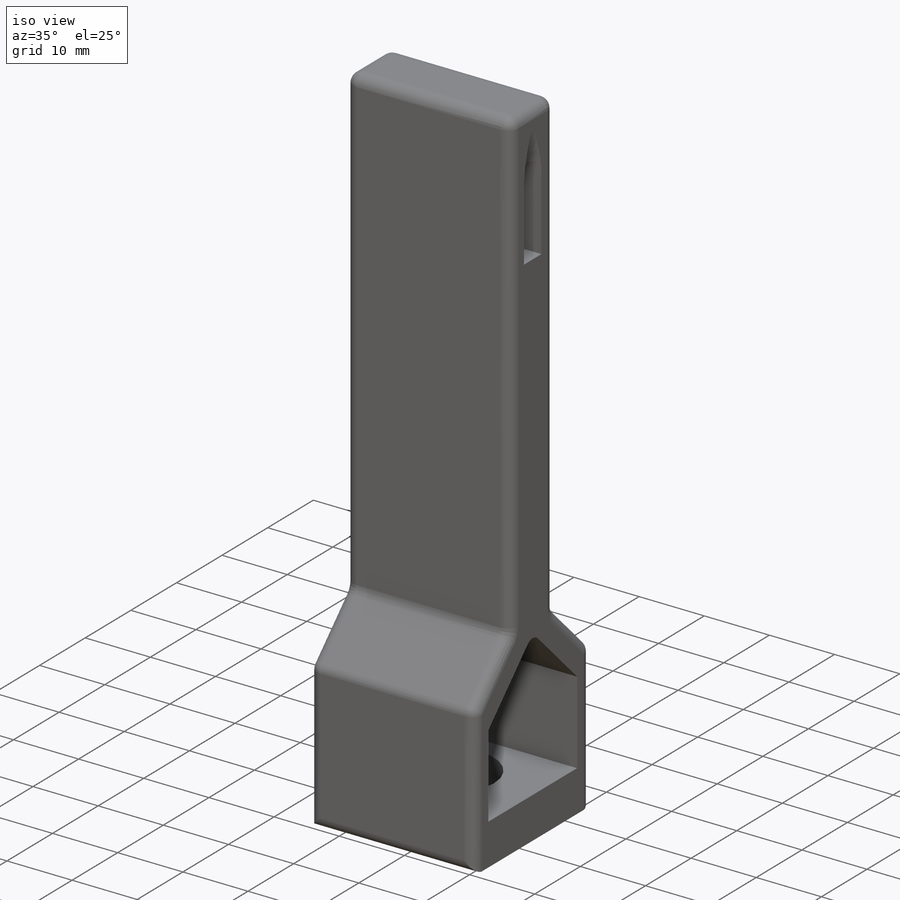
[diagram: iso view]
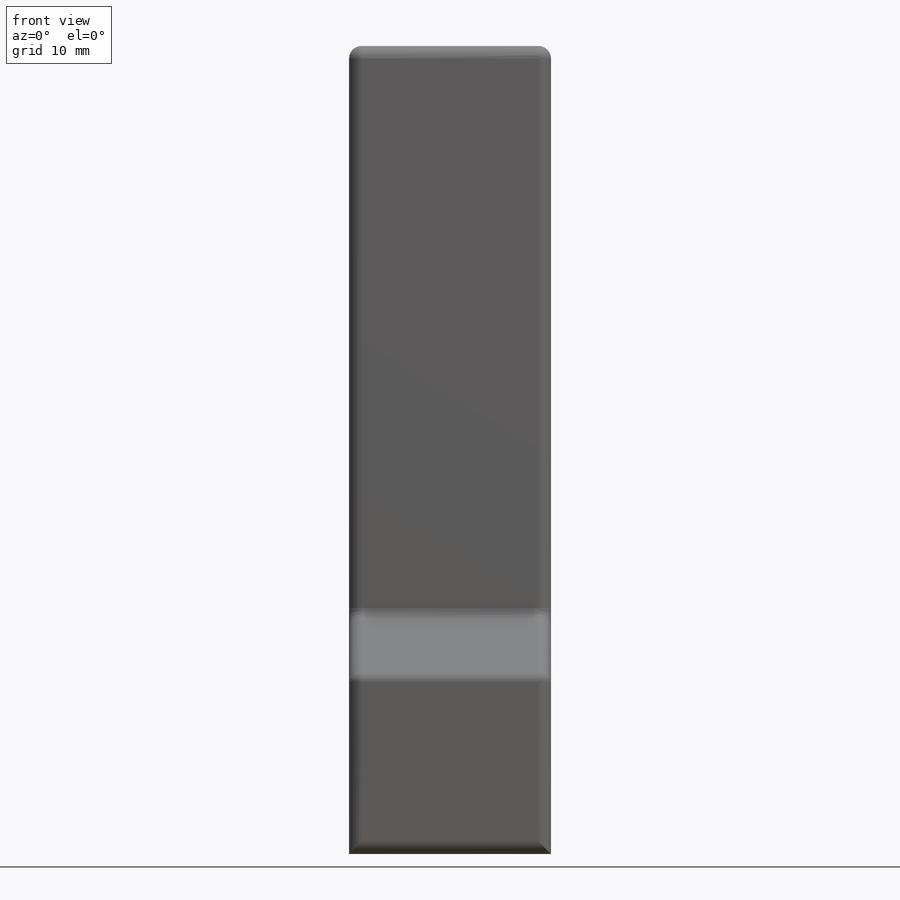
[diagram: front view]
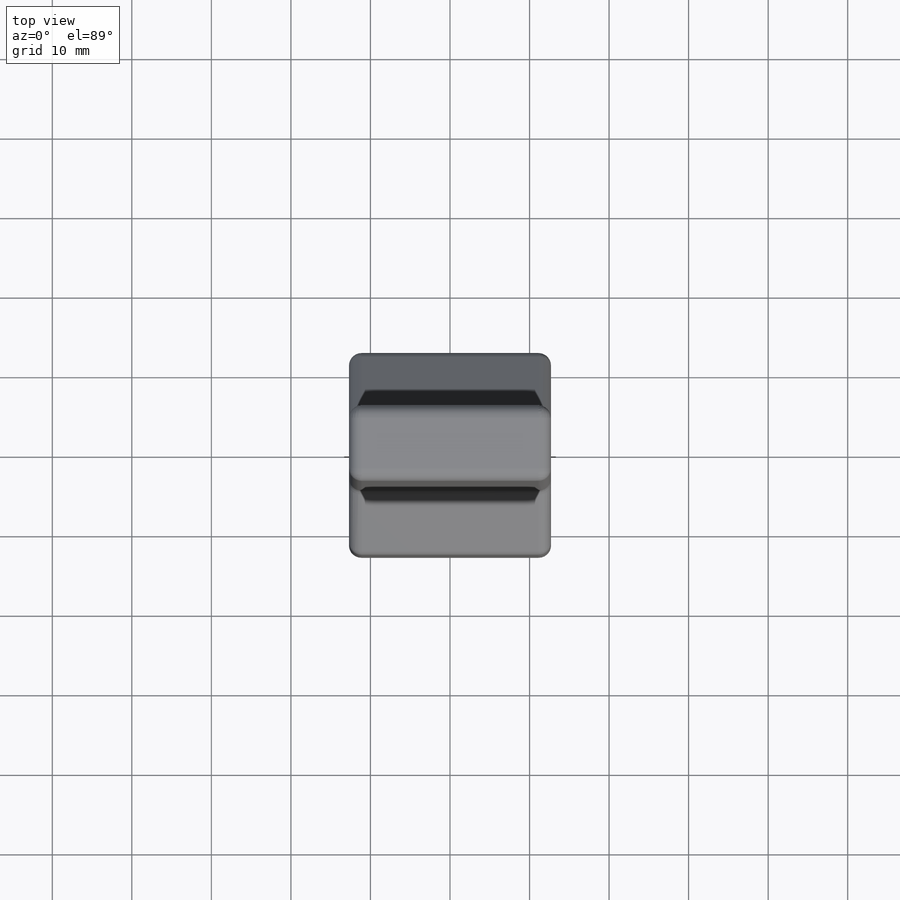
[diagram: top view]
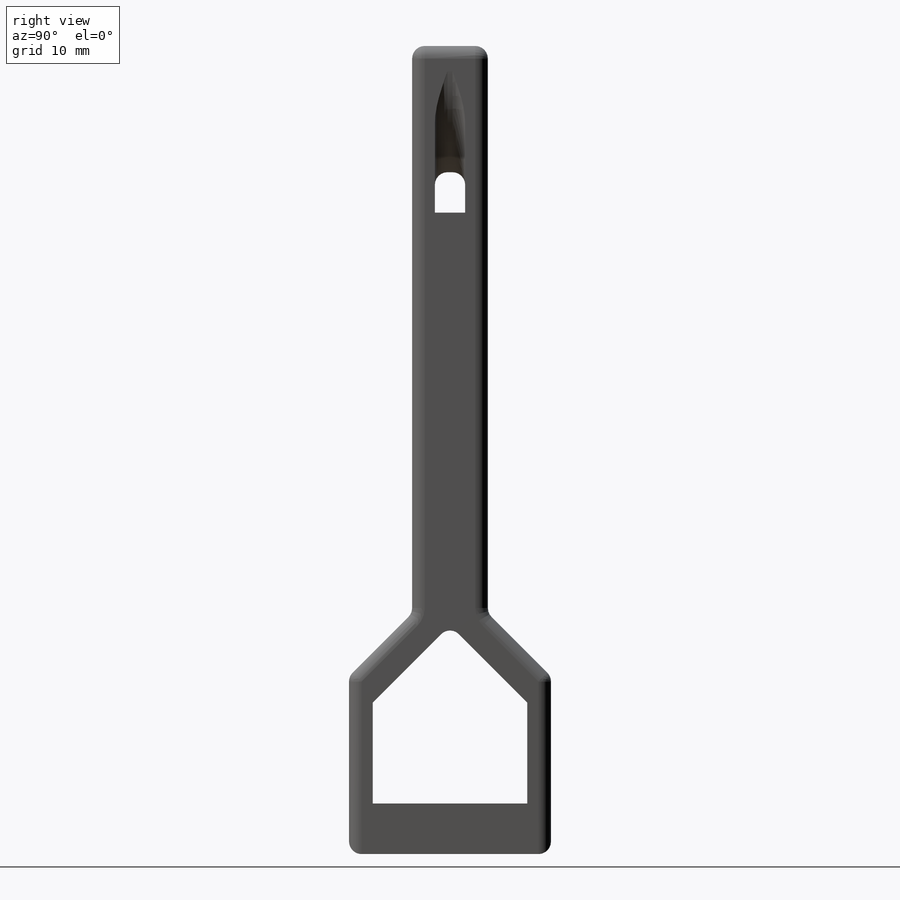
[diagram: right view]
SOLIDWORKS PART (.sldprt)
format: sldprt  version: not decoded by parser v0  size: 279,552 bytes
history: native  units: mm
features: sketch x5, cut_extrude x4, fillet x3, material x1, extrude x1, plane x1, mirror x1 (+13 scaffold rows collapsed)
feature tree (29):
  scaffold x13  (default folders/planes/origin — collapsed)
  material  "Material <not specified>"
  sketch  "Sketch2"  dims[D1=25.4mm]
  extrude  "Boss-Extrude1"  Depth=101.6mm
  sketch  "Sketch3"  dims[D1=12.7mm D2=6.35mm D3=19.431mm]
  cut_extrude  "Cut-Extrude1"  [1 undecoded]
  sketch  "Sketch4"  dims[D1=13.462mm]
  cut_extrude  "Cut-Extrude2"  [1 undecoded]
  sketch  "Sketch5"  dims[c1.D1=~70.235358mm c2.D1=135.0deg c2.D2=7.9375mm c2.D3=~3.388187mm]
  cut_extrude  "Cut-Extrude3"  [1 undecoded]
  plane  "Plane1"
  sketch  "Sketch6"  dims[D1=17.78mm D2=3.175mm]
  cut_extrude  "Cut-Extrude4"  Depth=3.81mm
  fillet  "Fillet1"  Radius=1.5875mm
  mirror  "Mirror1"
  fillet  "Fillet2"  Radius=1.5875mm
  fillet  "Fillet3"  Radius=1.5875mm
decode coverage: 10 of 14 modeling features carry decoded parameters
note: ~ marks probable driven/reference dimensions
note: 3 parameter values undecoded
summary: no parameter record found for 3 features
note: suppression state not decoded; provenance and decode notes live in map.json
